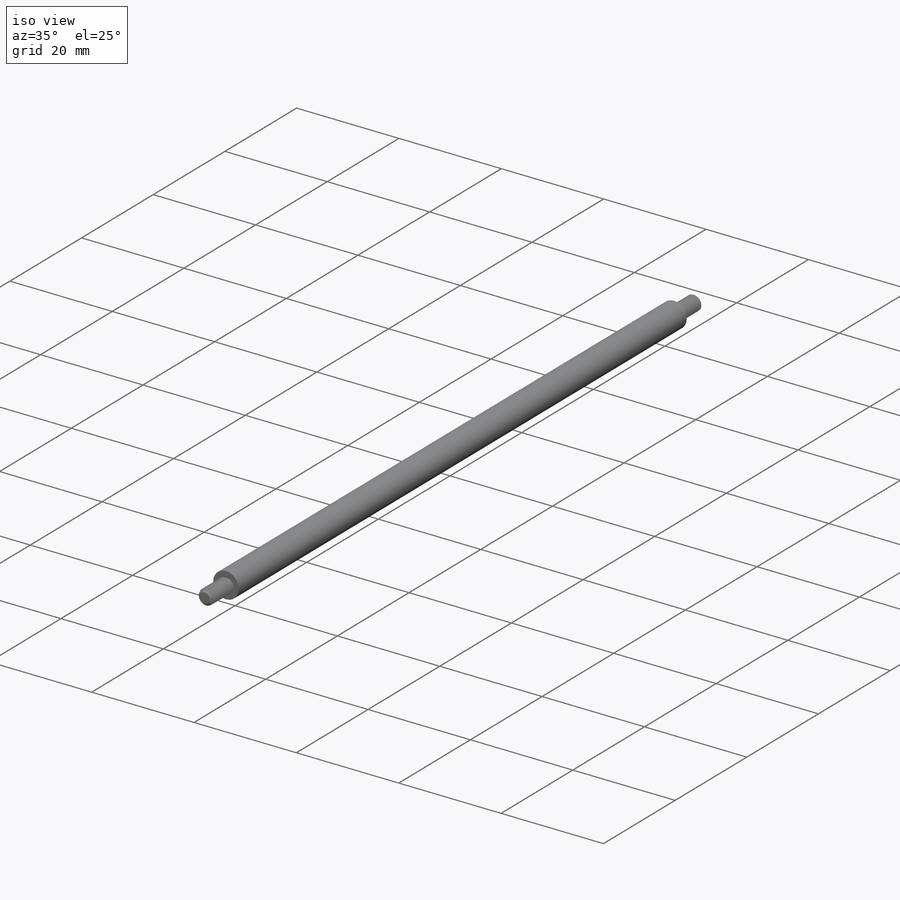
[diagram: iso view]
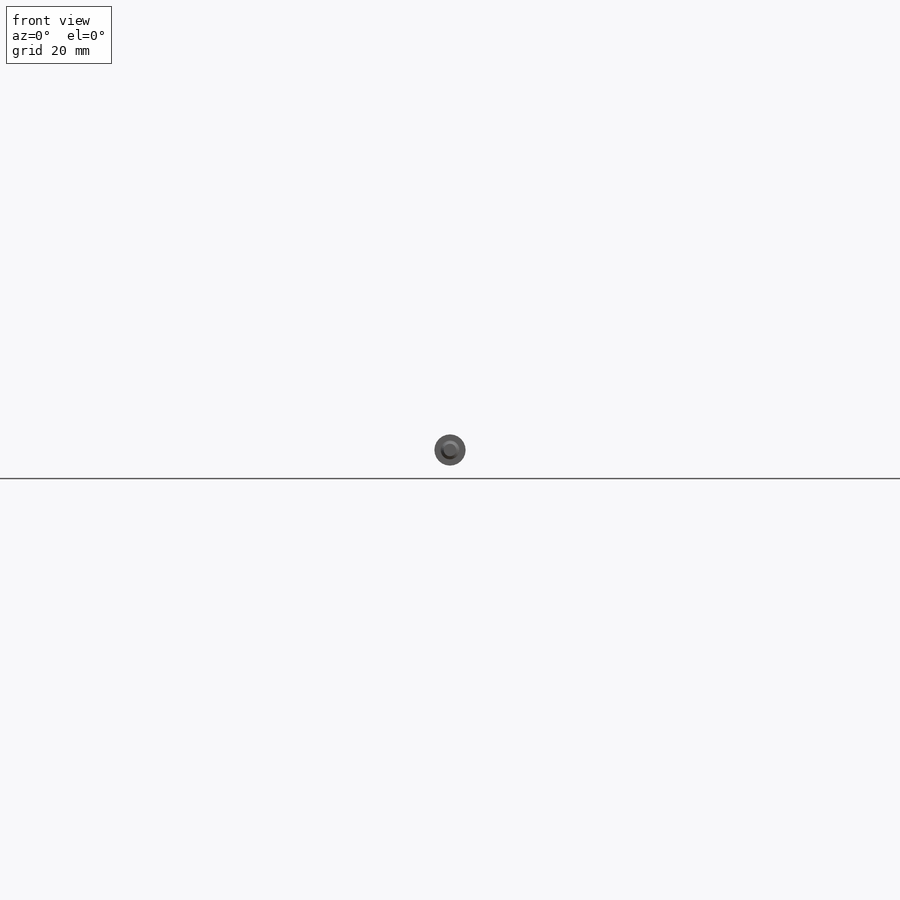
[diagram: front view]
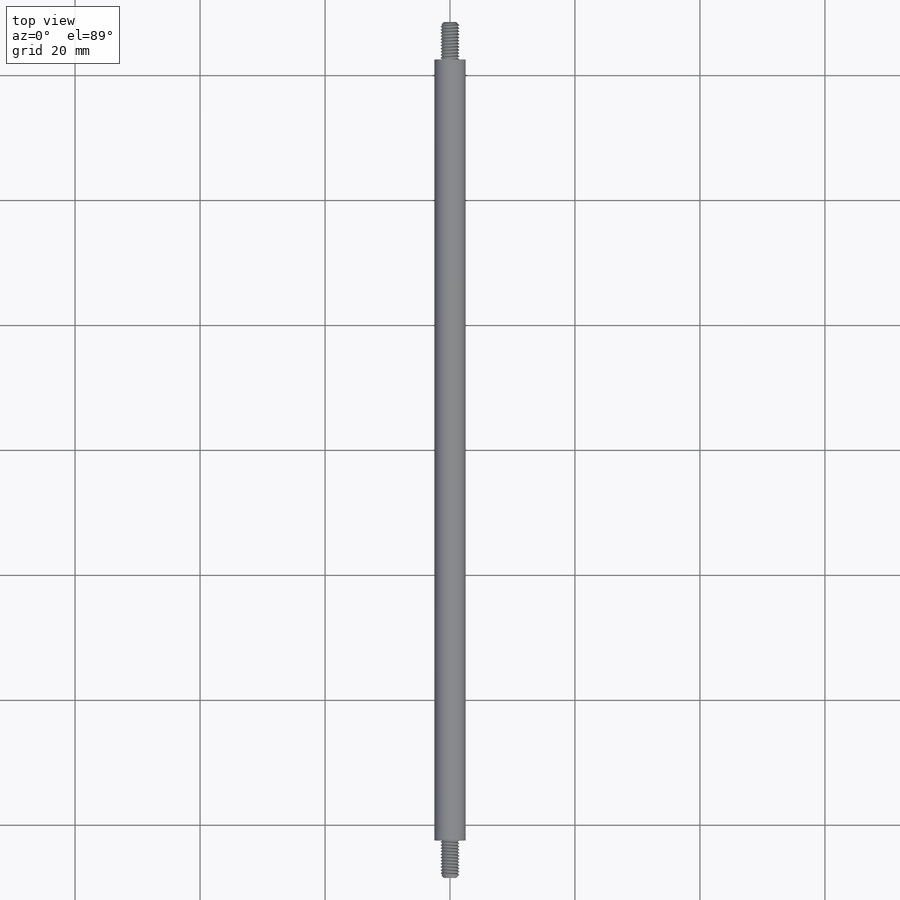
[diagram: top view]
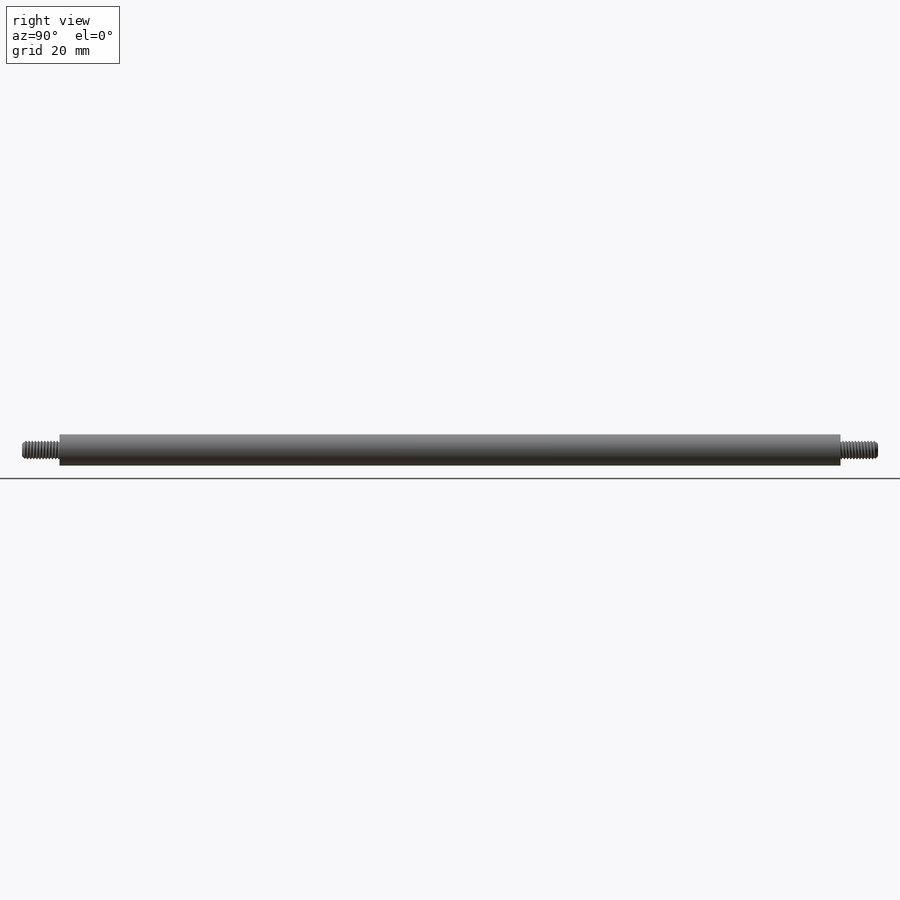
[diagram: right view]
SOLIDWORKS PART (.sldprt)
format: sldprt  version: not decoded by parser v0  size: 541,696 bytes
history: native  units: mm
features: plane x4, sketch x4, extrude x2, chamfer x2, material x1, helix x1, sweep x1, mirror x1 (+10 scaffold rows collapsed)
feature tree (26):
  scaffold x10  (default folders/planes/origin — collapsed)
  material  "材质 <未指定>"
  plane  "前视基准面"
  plane  "上视基准面"
  plane  "右视基准面"
  sketch  "草图1"  dims[D1=5.0mm]
  extrude  "凸台-拉伸1"  Depth=125mm
  sketch  "草图2"  dims[D1=3.0mm]
  extrude  "凸台-拉伸2"  Depth=6mm
  sketch  "草图3"  dims[D1=3.0mm]
  helix  "螺旋线/涡状线1"  Pitch=6mm
  plane  "基准面1"
  sketch  "草图4"  dims[c1.D1=0.1mm c1.D2=0.3mm c1.D3=1.3mm c2.D1=1.5mm c2.D2=68.5mm c2.D3=0.45mm c2.D4=0.35mm]
  sweep  "切除-扫描2"
  mirror  "镜向1"
  chamfer  "倒角1"  Distance=0.5mm Angle=45deg
  chamfer  "镜向2"  [1 undecoded]
decode coverage: 8 of 11 modeling features carry decoded parameters
note: 1 parameter value undecoded
note: suppression state not decoded; provenance and decode notes live in map.json
